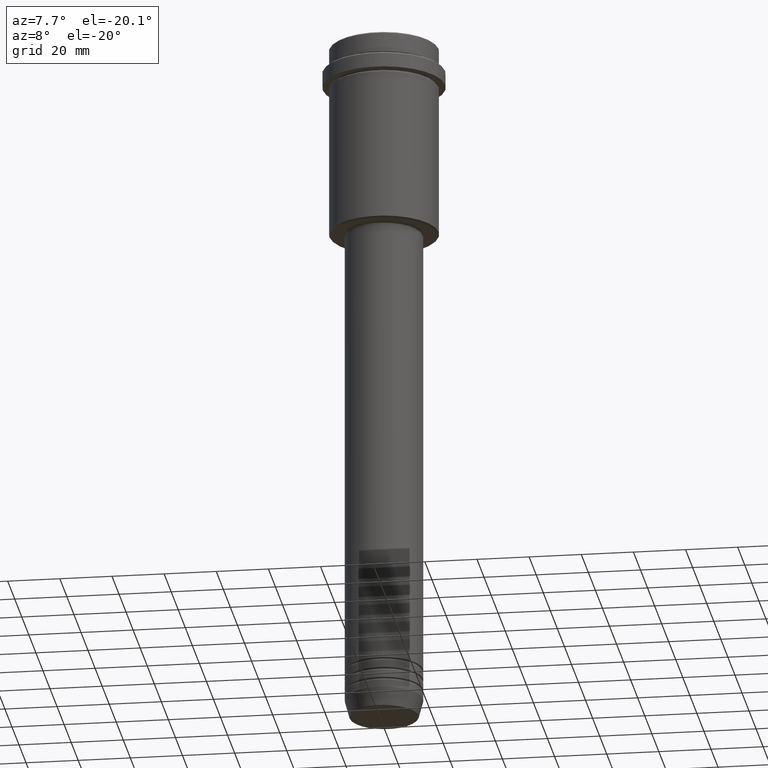
[diagram: clean part render]
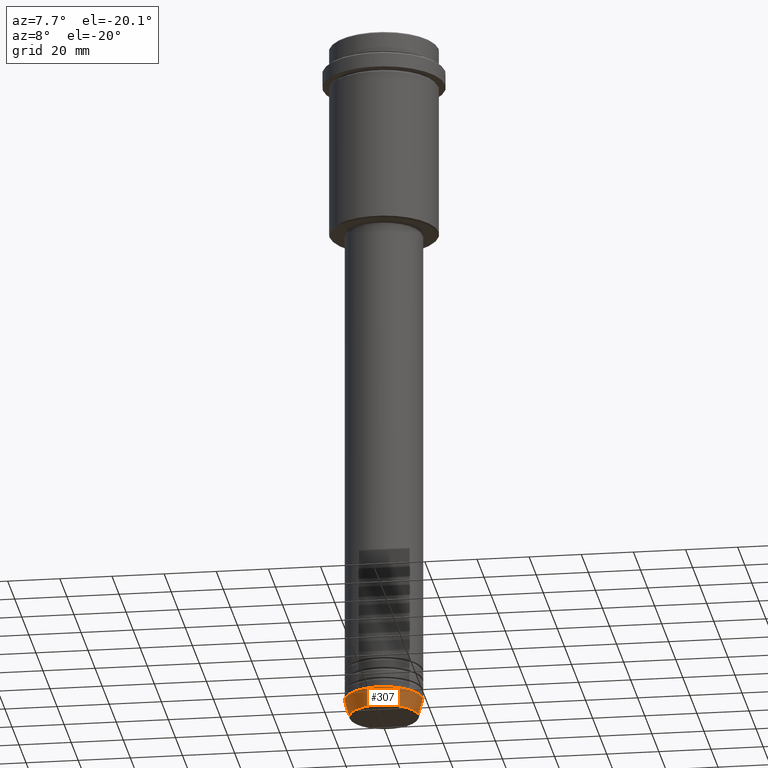
[diagram: same view with one face highlighted and labeled with its STEP entity id]
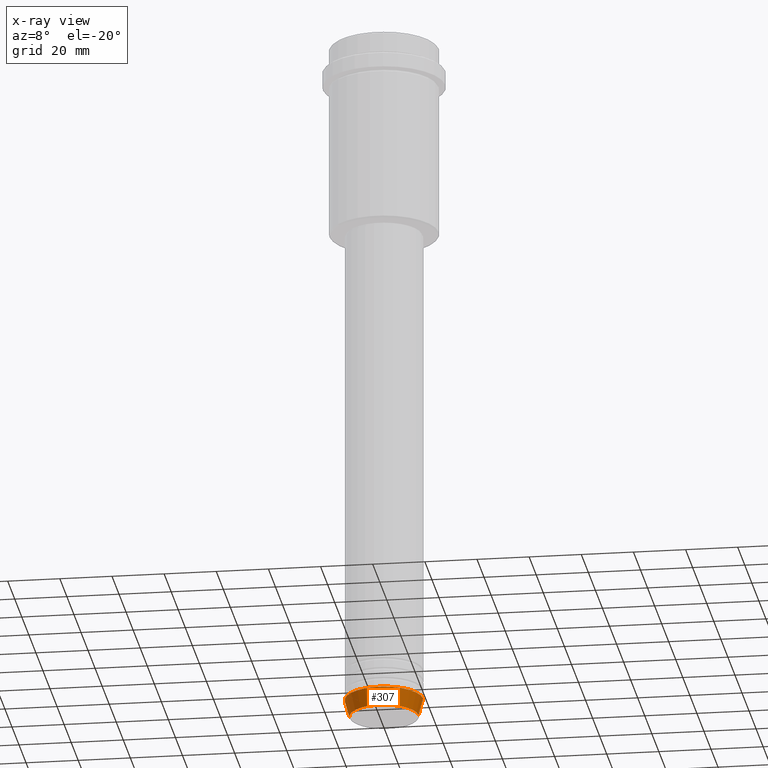
[diagram: x-ray of the same camera — body ghosted, the highlighted face saturated]
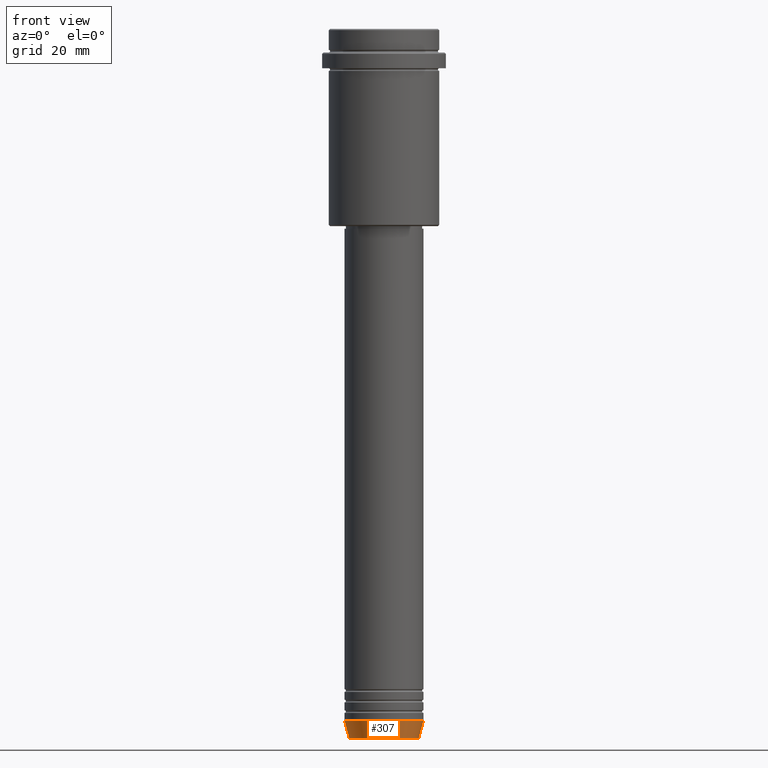
[diagram: same view with one face highlighted and labeled with its STEP entity id]
A machine part, auxiliary view. The second image highlights one B-rep face of the part: STEP entity #307.
The next image is the same camera in x-ray: the body ghosted, the highlighted face saturated — about 0% of this face is hidden behind the body in this view.
A second angle (front view) of the same face is appended — the face is thin or edge-on in the first view.
In plain terms, the highlighted conical surface has half-angle 15 deg.
Its self-contained STEP definition (entity closure, byte-faithful):
#139 = VECTOR ( 'NONE', #864, 1000.000000000000000 ) ;
#175 = EDGE_CURVE ( 'NONE', #925, #1365, #1194, .T. ) ;
#212 = AXIS2_PLACEMENT_3D ( 'NONE', #559, #1079, #249 ) ;
#232 = CARTESIAN_POINT ( 'NONE',  ( -15.00000000000000000, 1.836970198721029589E-15, -263.0000000000000000 ) ) ;
#233 = AXIS2_PLACEMENT_3D ( 'NONE', #430, #1397, #1297 ) ;
#249 = DIRECTION ( 'NONE',  ( 1.000000000000000000, 0.000000000000000000, 0.000000000000000000 ) ) ;
#272 = CARTESIAN_POINT ( 'NONE',  ( -15.00000000000000000, 1.836970198721029589E-15, -263.0000000000000000 ) ) ;
#277 = DIRECTION ( 'NONE',  ( 0.2588190451025213501, 0.000000000000000000, 0.9659258262890680902 ) ) ;
#307 = ADVANCED_FACE ( 'NONE', ( #691 ), #345, .T. ) ;
#345 = CONICAL_SURFACE ( 'NONE', #612, 15.00000000000000000, 0.2617993877991500740 ) ;
#385 = EDGE_CURVE ( 'NONE', #1148, #1260, #576, .T. ) ;
#405 = EDGE_CURVE ( 'NONE', #1365, #1260, #419, .T. ) ;
#418 = CARTESIAN_POINT ( 'NONE',  ( -13.22365507213718772, 1.728200442216588386E-15, -269.6294095225513274 ) ) ;
#419 = CIRCLE ( 'NONE', #233, 15.00000000000000000 ) ;
#430 = CARTESIAN_POINT ( 'NONE',  ( 0.000000000000000000, 0.000000000000000000, -263.0000000000000000 ) ) ;
#477 = DIRECTION ( 'NONE',  ( -0.000000000000000000, -0.000000000000000000, 1.000000000000000000 ) ) ;
#492 = CARTESIAN_POINT ( 'NONE',  ( 15.00000000000000000, 0.000000000000000000, -263.0000000000000000 ) ) ;
#501 = DIRECTION ( 'NONE',  ( 1.000000000000000000, 0.000000000000000000, 0.000000000000000000 ) ) ;
#559 = CARTESIAN_POINT ( 'NONE',  ( 0.000000000000000000, 0.000000000000000000, -269.6294095225513274 ) ) ;
#576 = LINE ( 'NONE', #1251, #728 ) ;
#609 = EDGE_CURVE ( 'NONE', #925, #1148, #951, .T. ) ;
#612 = AXIS2_PLACEMENT_3D ( 'NONE', #1122, #477, #501 ) ;
#619 = ORIENTED_EDGE ( 'NONE', *, *, #385, .T. ) ;
#691 = FACE_OUTER_BOUND ( 'NONE', #1293, .T. ) ;
#728 = VECTOR ( 'NONE', #277, 1000.000000000000000 ) ;
#864 = DIRECTION ( 'NONE',  ( -0.2588190451025213501, 3.169619151431772337E-17, 0.9659258262890680902 ) ) ;
#897 = ORIENTED_EDGE ( 'NONE', *, *, #405, .F. ) ;
#925 = VERTEX_POINT ( 'NONE', #418 ) ;
#951 = CIRCLE ( 'NONE', #212, 13.22365507213718772 ) ;
#1079 = DIRECTION ( 'NONE',  ( -0.000000000000000000, -0.000000000000000000, 1.000000000000000000 ) ) ;
#1122 = CARTESIAN_POINT ( 'NONE',  ( 0.000000000000000000, 0.000000000000000000, -263.0000000000000000 ) ) ;
#1148 = VERTEX_POINT ( 'NONE', #1221 ) ;
#1194 = LINE ( 'NONE', #232, #139 ) ;
#1221 = CARTESIAN_POINT ( 'NONE',  ( 13.22365507213718772, 0.000000000000000000, -269.6294095225513274 ) ) ;
#1251 = CARTESIAN_POINT ( 'NONE',  ( 15.00000000000000000, 0.000000000000000000, -263.0000000000000000 ) ) ;
#1260 = VERTEX_POINT ( 'NONE', #492 ) ;
#1293 = EDGE_LOOP ( 'NONE', ( #1381, #1392, #619, #897 ) ) ;
#1297 = DIRECTION ( 'NONE',  ( 1.000000000000000000, 0.000000000000000000, 0.000000000000000000 ) ) ;
#1365 = VERTEX_POINT ( 'NONE', #272 ) ;
#1381 = ORIENTED_EDGE ( 'NONE', *, *, #175, .F. ) ;
#1392 = ORIENTED_EDGE ( 'NONE', *, *, #609, .T. ) ;
#1397 = DIRECTION ( 'NONE',  ( -0.000000000000000000, -0.000000000000000000, 1.000000000000000000 ) ) ;